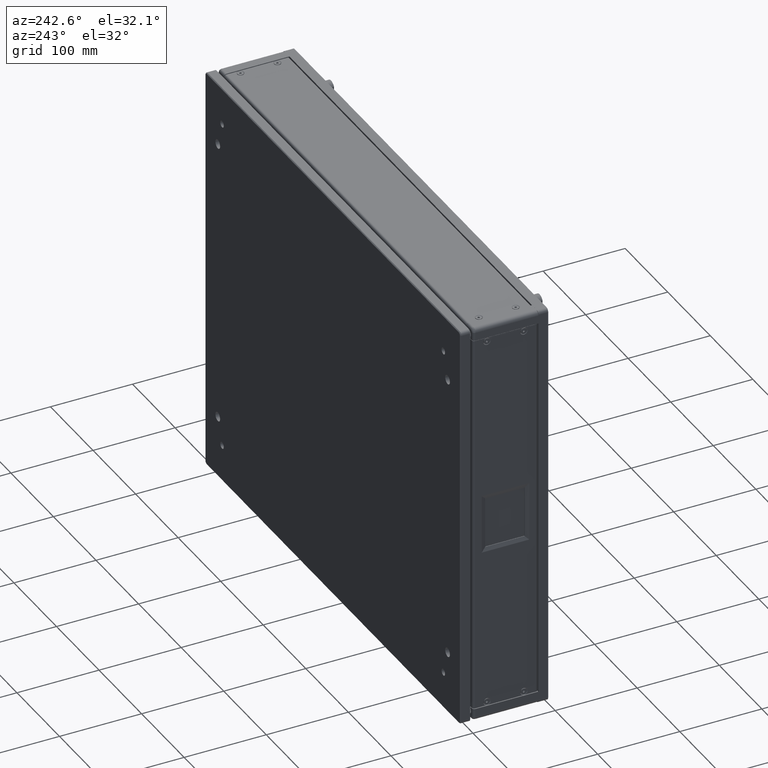
[diagram: clean part render]
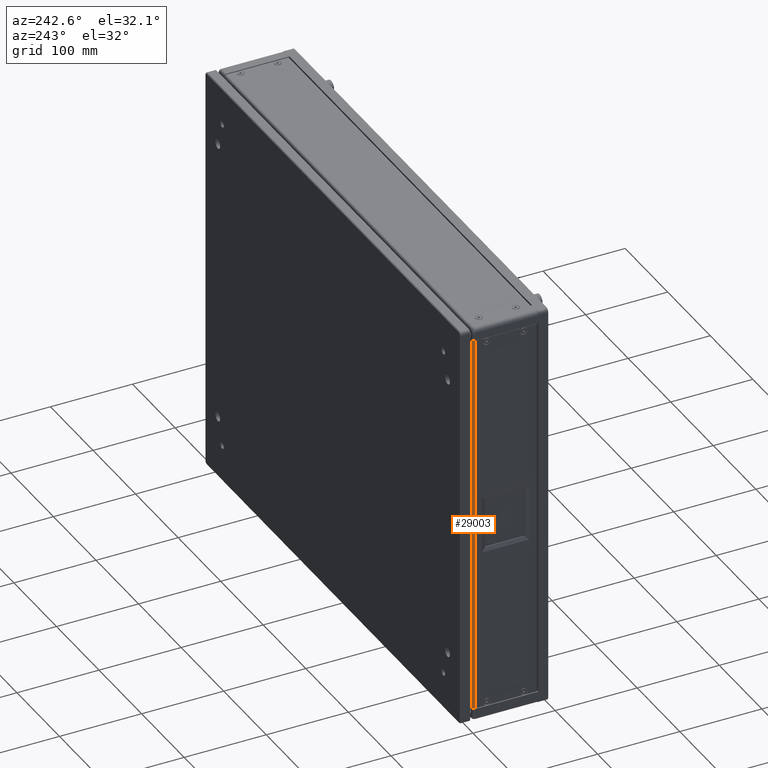
[diagram: same view with one face highlighted and labeled with its STEP entity id]
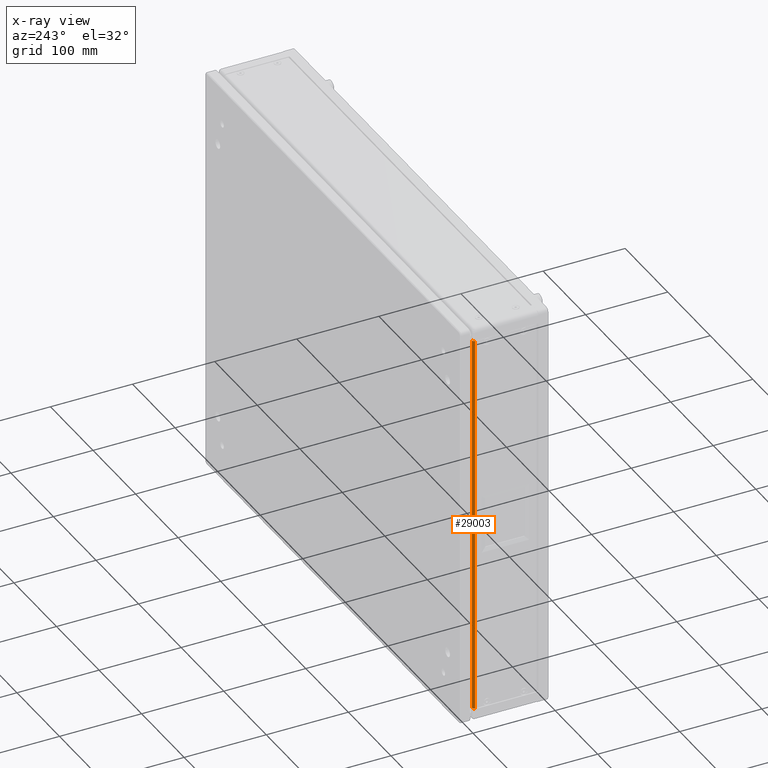
[diagram: x-ray of the same camera — body ghosted, the highlighted face saturated]
A machine part, auxiliary view. The second image highlights one B-rep face of the part: STEP entity #29003.
The next image is the same camera in x-ray: the body ghosted, the highlighted face saturated — about 0% of this face is hidden behind the body in this view.
In plain terms, the highlighted cylindrical surface (edge-blend (fillet) strip) has radius 2.7366 mm, axis along (0, -0, 1).
Its self-contained STEP definition (entity closure, byte-faithful):
#460 = DIRECTION ( 'NONE',  ( 1.000000000000000000, 0.000000000000000000, 0.000000000000000000 ) ) ;
#621 = VERTEX_POINT ( 'NONE', #25596 ) ;
#3621 = CARTESIAN_POINT ( 'NONE',  ( -292.3121244020111931, 97.63718110050371024, 310.5000000000070486 ) ) ;
#4391 = FACE_OUTER_BOUND ( 'NONE', #35696, .T. ) ;
#4512 = CARTESIAN_POINT ( 'NONE',  ( -292.3121244020111931, 94.90058110050370033, 310.5000000000070486 ) ) ;
#5426 = CARTESIAN_POINT ( 'NONE',  ( -295.0487244020112030, 94.90058110050370033, 310.5000000000070486 ) ) ;
#5817 = LINE ( 'NONE', #5426, #6030 ) ;
#6018 = DIRECTION ( 'NONE',  ( -2.289834988289385365E-16, 5.830175127649040374E-29, -1.000000000000000000 ) ) ;
#6030 = VECTOR ( 'NONE', #6018, 1000.000000000000000 ) ;
#6561 = AXIS2_PLACEMENT_3D ( 'NONE', #36499, #17899, #460 ) ;
#6798 = CYLINDRICAL_SURFACE ( 'NONE', #16104, 2.736599999999977939 ) ;
#7314 = ORIENTED_EDGE ( 'NONE', *, *, #30477, .F. ) ;
#9305 = VERTEX_POINT ( 'NONE', #12280 ) ;
#9316 = LINE ( 'NONE', #20597, #10653 ) ;
#9390 = CIRCLE ( 'NONE', #31497, 2.736599999999977939 ) ;
#10475 = VERTEX_POINT ( 'NONE', #35463 ) ;
#10653 = VECTOR ( 'NONE', #39209, 1000.000000000000000 ) ;
#12280 = CARTESIAN_POINT ( 'NONE',  ( -292.3121244020110794, 97.63718110050369603, 779.5000000000069349 ) ) ;
#12934 = DIRECTION ( 'NONE',  ( 2.289834988289385365E-16, -5.830175127649040374E-29, 1.000000000000000000 ) ) ;
#14243 = DIRECTION ( 'NONE',  ( -2.289834988289385365E-16, 5.830175127649040374E-29, -1.000000000000000000 ) ) ;
#16104 = AXIS2_PLACEMENT_3D ( 'NONE', #16497, #12934, #25017 ) ;
#16497 = CARTESIAN_POINT ( 'NONE',  ( -292.3121244020110794, 94.90058110050370033, 779.5000000000069349 ) ) ;
#17013 = ORIENTED_EDGE ( 'NONE', *, *, #28726, .T. ) ;
#17899 = DIRECTION ( 'NONE',  ( -2.289834988289385365E-16, 5.830175127649040374E-29, -1.000000000000000000 ) ) ;
#17967 = CIRCLE ( 'NONE', #6561, 2.736599999999977939 ) ;
#20597 = CARTESIAN_POINT ( 'NONE',  ( -292.3121244020110794, 97.63718110050369603, 779.5000000000069349 ) ) ;
#21183 = ORIENTED_EDGE ( 'NONE', *, *, #34423, .F. ) ;
#25017 = DIRECTION ( 'NONE',  ( 1.000000000000000000, 0.000000000000000000, 0.000000000000000000 ) ) ;
#25596 = CARTESIAN_POINT ( 'NONE',  ( -295.0487244020110893, 94.90058110050370033, 779.5000000000069349 ) ) ;
#28726 = EDGE_CURVE ( 'NONE', #621, #9305, #17967, .T. ) ;
#28882 = DIRECTION ( 'NONE',  ( 1.000000000000000000, 0.000000000000000000, 0.000000000000000000 ) ) ;
#28944 = VERTEX_POINT ( 'NONE', #3621 ) ;
#29003 = ADVANCED_FACE ( 'NONE', ( #4391 ), #6798, .T. ) ;
#30477 = EDGE_CURVE ( 'NONE', #621, #10475, #5817, .T. ) ;
#31497 = AXIS2_PLACEMENT_3D ( 'NONE', #4512, #14243, #28882 ) ;
#34076 = EDGE_CURVE ( 'NONE', #9305, #28944, #9316, .T. ) ;
#34423 = EDGE_CURVE ( 'NONE', #10475, #28944, #9390, .T. ) ;
#35463 = CARTESIAN_POINT ( 'NONE',  ( -295.0487244020112030, 94.90058110050370033, 310.5000000000070486 ) ) ;
#35696 = EDGE_LOOP ( 'NONE', ( #38244, #21183, #7314, #17013 ) ) ;
#36499 = CARTESIAN_POINT ( 'NONE',  ( -292.3121244020110794, 94.90058110050370033, 779.5000000000069349 ) ) ;
#38244 = ORIENTED_EDGE ( 'NONE', *, *, #34076, .T. ) ;
#39209 = DIRECTION ( 'NONE',  ( -2.289834988289385365E-16, 5.830175127649040374E-29, -1.000000000000000000 ) ) ;